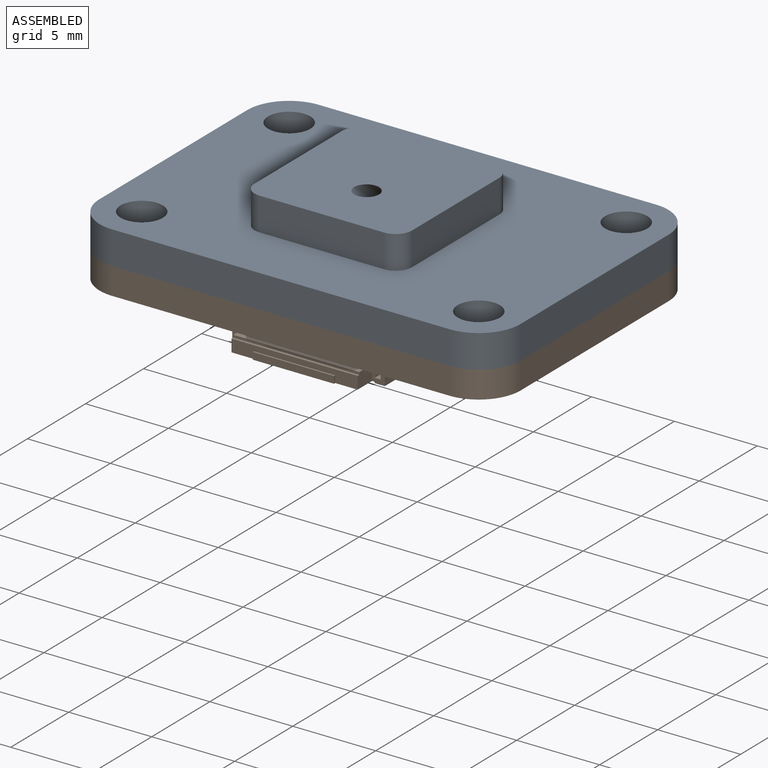
[diagram: assembled view]
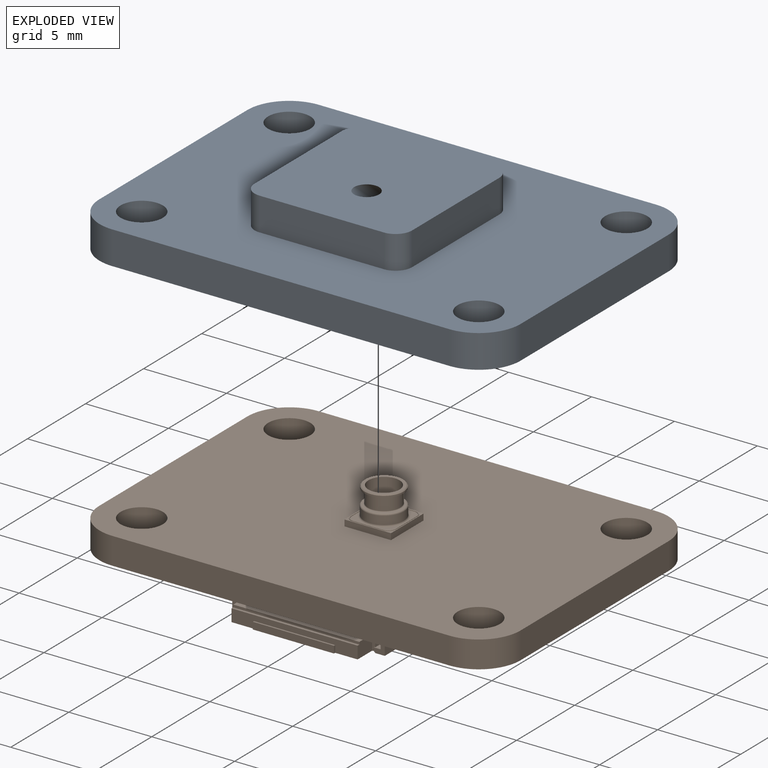
[diagram: exploded view]
GUIDED TOUR — FREECAD ASSEMBLY "LPS28_breakoutBoard_Mount"

This assembly has 2 components, labeled P0..P1 below (a component is one placed body or linked part; the same part can appear more than once), held together by 0 modeled joints plus 1 derived contact edge. A joint is a constraint between two components; its type names the relative motion it leaves free:
  CONTACT — a derived adjacency edge — the two components touch in the source model (clearance under 2% of the assembly's diagonal); it is measured from the geometry, not a modeled constraint.
Axis/direction vectors are unit vectors and 'through' points are millimeter coordinates, both in the assembly's world frame.

MATES
  1. CONTACT "contact_0_1": P0 <-> P1, contact direction (0.000, 0.000, -1.000) through (-11.05, -7.26, 0.00) mm (derived from contact, not a modeled constraint)

ASSEMBLY ORDER
  1. P0 — the base component [order verified]
  2. P1 [order verified]
Order-tag legend:
  [order verified] — this step's position reverses a verified removal order: the component was checked to insert without passing through the ones already placed.

Of the 2 components, 2 carry a construction recipe — the FreeCAD feature program (sketches with constraints, then the solid features that consume them) that regenerates the part from scratch, quoted from this document or from the linked companion document it references; the rest are supplied as boundary geometry only. The tour below walks the components in assembly order: each is shown spotlighted twice — in the assembled view, then in the exploded view, where a leader line traces a displaced component back to its assembled socket (components that stay in place when exploded have no leader line; saturated green if recipe-attached, orange if geometry-only; every other component desaturated gray) — followed by its recipe or geometry summary and the mates that hold it.
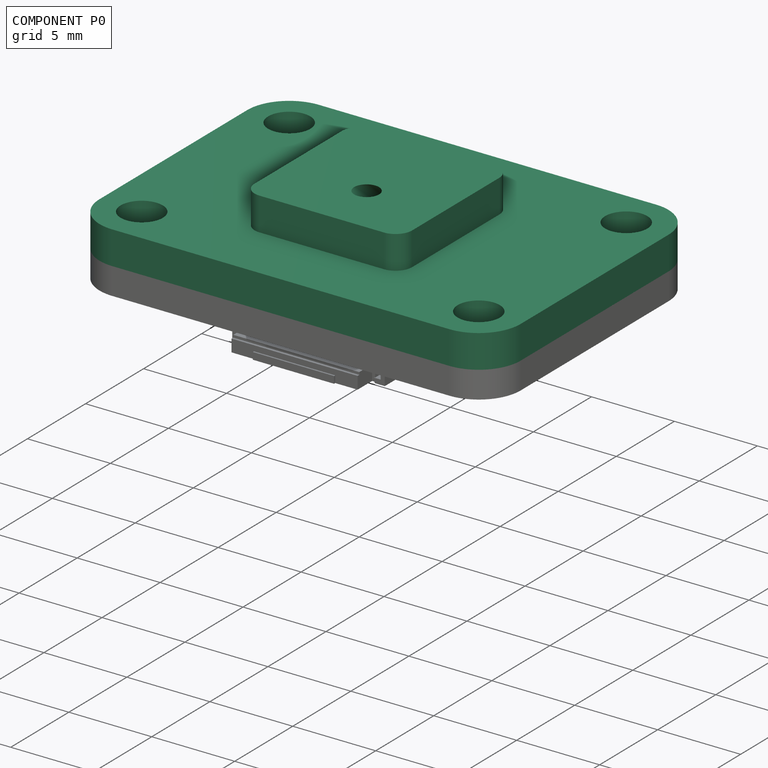
[diagram: component P0 — assembled]
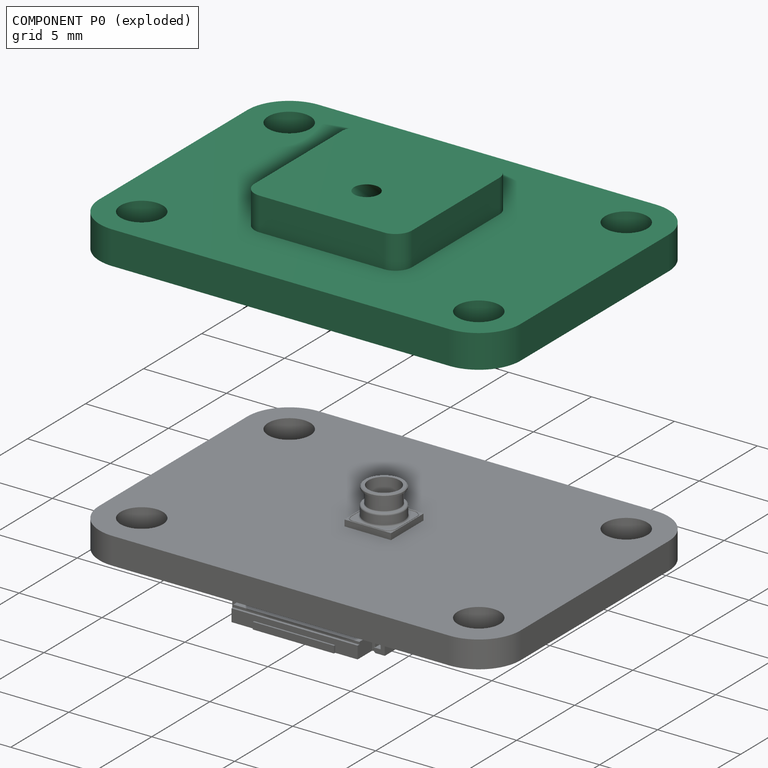
[diagram: component P0 — exploded]
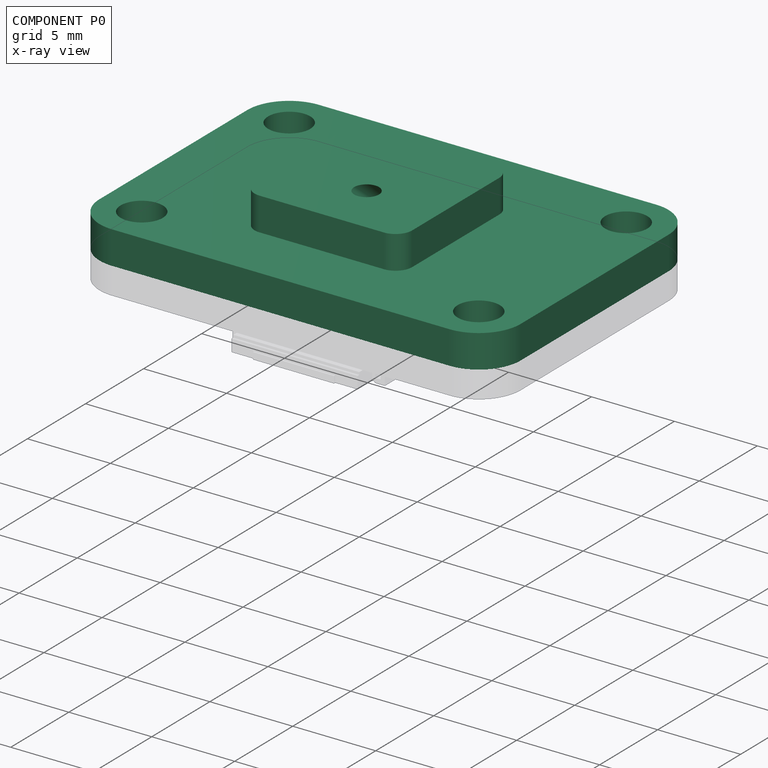
[diagram: component P0 — x-ray view]
COMPONENT P0 — recipe-attached ("Body001", modeled in this document).
Held by: resting contact with P1 (derived edge).
Construction recipe (the document's own serialized feature program — sketch geometry with constraints, then the solid features built on it; lengths are millimeters unless a unit is written):

FEATURE [Sketcher::SketchObject] Sketch
  ArcFitTolerance = 1e-06
  AttachmentSupport = -> [XY_Plane]
  FullyConstrained = true
  MakeInternals = false
  MapMode = 5
  sketch-geometry (10):
    g0: LineSegment StartX=-12.7 StartY=6.35 StartZ=0 EndX=-12.7 EndY=-6.35 EndZ=0
    g1: LineSegment StartX=-10.16 StartY=-8.89 StartZ=0 EndX=10.16 EndY=-8.89 EndZ=0
    g2: LineSegment StartX=12.7 StartY=-6.35 StartZ=0 EndX=12.7 EndY=6.35 EndZ=0
    g3: LineSegment StartX=10.16 StartY=8.89 StartZ=0 EndX=-10.16 EndY=8.89 EndZ=0
    g4: ArcOfCircle CenterX=-10.16 CenterY=6.35 CenterZ=0 NormalX=0 NormalY=0 NormalZ=1 AngleXU=0 Radius=2.54 StartAngle=1.5708 EndAngle=3.14159
    g5: ArcOfCircle CenterX=-10.16 CenterY=-6.35 CenterZ=0 NormalX=0 NormalY=0 NormalZ=1 AngleXU=0 Radius=2.54 StartAngle=3.14159 EndAngle=4.71239
    g6: ArcOfCircle CenterX=10.16 CenterY=-6.35 CenterZ=0 NormalX=0 NormalY=0 NormalZ=1 AngleXU=0 Radius=2.54 StartAngle=4.71239 EndAngle=6.28319
    g7: ArcOfCircle CenterX=10.16 CenterY=6.35 CenterZ=0 NormalX=0 NormalY=0 NormalZ=1 AngleXU=0 Radius=2.54 StartAngle=9.695e-13 EndAngle=1.5708
    g8: GeomPoint [constr] X=-12.7 Y=8.89 Z=0
    g9: GeomPoint [constr] X=12.7 Y=-8.89 Z=0
  constraints (24):
    c: Tangent(g0,g4) = -1.5708
    c: Tangent(g0,g5) = -1.5708
    c: Tangent(g1,g5) = -1.5708
    c: Tangent(g1,g6) = -1.5708
    c: Tangent(g2,g6) = -1.5708
    c: Tangent(g2,g7) = -1.5708
    c: Tangent(g3,g7) = -1.5708
    c: Tangent(g3,g4) = -1.5708
    c: Vertical(g0)
    c: Vertical(g2)
    c: Horizontal(g1)
    c: Horizontal(g3)
    c: Equal(g4,g5)
    c: Equal(g5,g6)
    c: Equal(g6,g7)
    c: PointOnObject(g8,g0)
    c: PointOnObject(g8,g3)
    c: PointOnObject(g9,g1)
    c: PointOnObject(g9,g2)
    c: Distance(g2,g0) = 25.4
    c: Distance(g1,g3) = 17.78
    c: Distance(g-1,g0) = 12.7
    c: Distance(g-1,g3) = 8.89
    c: Radius(g6) = 2.54
FEATURE [PartDesign::Pad] Pad
  Direction = (0,0,1)
  Length = 2
  Length2 = 10
  Profile = -> Sketch
  ReferenceAxis = -> Sketch [N_Axis]
  Refine = true
  Suppressed = false
  Type = 0
FEATURE [Sketcher::SketchObject] Sketch001
  ArcFitTolerance = 1e-06
  AttachmentSupport = -> [XY_Plane]
  FullyConstrained = true
  MakeInternals = false
  MapMode = 5
FEATURE [Sketcher::SketchObject] Sketch002
  ArcFitTolerance = 1e-06
  AttachmentSupport = -> [Pad]
  FullyConstrained = true
  MakeInternals = false
  MapMode = 5
  Placement = pos=(0,0,2) rot=(0,0,1;0rad)
  sketch-geometry (10):
    g0: LineSegment StartX=-4.5 StartY=3.5 StartZ=0 EndX=-4.5 EndY=-3.5 EndZ=0
    g1: LineSegment StartX=-3.5 StartY=-4.5 StartZ=0 EndX=3.5 EndY=-4.5 EndZ=0
    g2: LineSegment StartX=4.5 StartY=-3.5 StartZ=0 EndX=4.5 EndY=3.5 EndZ=0
    g3: LineSegment StartX=3.5 StartY=4.5 StartZ=0 EndX=-3.5 EndY=4.5 EndZ=0
    g4: ArcOfCircle CenterX=-3.5 CenterY=3.5 CenterZ=0 NormalX=0 NormalY=0 NormalZ=1 AngleXU=0 Radius=1 StartAngle=1.5708 EndAngle=3.14159
    g5: ArcOfCircle CenterX=-3.5 CenterY=-3.5 CenterZ=0 NormalX=0 NormalY=0 NormalZ=1 AngleXU=0 Radius=1 StartAngle=3.14159 EndAngle=4.71239
    g6: ArcOfCircle CenterX=3.5 CenterY=-3.5 CenterZ=0 NormalX=0 NormalY=0 NormalZ=1 AngleXU=0 Radius=1 StartAngle=4.71239 EndAngle=6.28319
    g7: ArcOfCircle CenterX=3.5 CenterY=3.5 CenterZ=0 NormalX=0 NormalY=0 NormalZ=1 AngleXU=0 Radius=1 StartAngle=2e-16 EndAngle=1.5708
    g8: GeomPoint [constr] X=-4.5 Y=4.5 Z=0
    g9: GeomPoint [constr] X=4.5 Y=-4.5 Z=0
  constraints (24):
    c: Tangent(g0,g4) = -1.5708
    c: Tangent(g0,g5) = -1.5708
    c: Tangent(g1,g5) = -1.5708
    c: Tangent(g1,g6) = -1.5708
    c: Tangent(g2,g6) = -1.5708
    c: Tangent(g2,g7) = -1.5708
    c: Tangent(g3,g7) = -1.5708
    c: Tangent(g3,g4) = -1.5708
    c: Vertical(g0)
    c: Vertical(g2)
    c: Horizontal(g1)
    c: Horizontal(g3)
    c: Equal(g4,g5)
    c: Equal(g5,g6)
    c: Equal(g6,g7)
    c: PointOnObject(g8,g0)
    c: PointOnObject(g8,g3)
    c: PointOnObject(g9,g1)
    c: PointOnObject(g9,g2)
    c: Distance(g2,g0) = 9
    c: Distance(g1,g3) = 9
    c: Radius(g7) = 1
    c: Distance(g-1,g3) = 4.5
    c: Distance(g-2,g2) = 4.5
FEATURE [PartDesign::Pad] Pad001
  BaseFeature = -> Pad
  Direction = (0,0,1)
  Length = 2
  Length2 = 10
  Profile = -> Sketch002
  ReferenceAxis = -> Sketch002 [N_Axis]
  Refine = true
  Suppressed = false
  Type = 0
FEATURE [Sketcher::SketchObject] Sketch003
  ArcFitTolerance = 1e-06
  AttachmentSupport = -> [Pad001]
  FullyConstrained = true
  MakeInternals = false
  MapMode = 5
  Placement = pos=(0,0,0) rot=(1,0,0;3.14159rad)
  sketch-geometry (4):
    g0: LineSegment StartX=-1.625 StartY=1.625 StartZ=0 EndX=-1.625 EndY=-1.625 EndZ=0
    g1: LineSegment StartX=-1.625 StartY=-1.625 StartZ=0 EndX=1.625 EndY=-1.625 EndZ=0
    g2: LineSegment StartX=1.625 StartY=-1.625 StartZ=0 EndX=1.625 EndY=1.625 EndZ=0
    g3: LineSegment StartX=1.625 StartY=1.625 StartZ=0 EndX=-1.625 EndY=1.625 EndZ=0
  constraints (12):
    c: Coincident(g0,g1)
    c: Coincident(g1,g2)
    c: Coincident(g2,g3)
    c: Coincident(g3,g0)
    c: Vertical(g0)
    c: Vertical(g2)
    c: Horizontal(g1)
    c: Horizontal(g3)
    c: DistanceX(g3,g3) = 3.25
    c: DistanceY(g0,g0) = 3.25
    c: Distance(g-2,g0) = 1.625
    c: Distance(g-1,g3) = 1.625
FEATURE [PartDesign::Pocket] Pocket
  BaseFeature = -> Pad001
  Direction = (0,0,1)
  Length = 0.75
  Length2 = 5
  Profile = -> Sketch003
  ReferenceAxis = -> Sketch003 [N_Axis]
  Refine = true
  Suppressed = false
  Type = 0
FEATURE [Sketcher::SketchObject] Sketch004
  ArcFitTolerance = 1e-06
  AttachmentSupport = -> [Pocket]
  FullyConstrained = true
  MakeInternals = false
  MapMode = 5
  Placement = pos=(0,0,0.75) rot=(1,0,0;3.14159rad)
  sketch-geometry (1):
    g0: Circle CenterX=0 CenterY=0 CenterZ=0 NormalX=0 NormalY=0 NormalZ=1 AngleXU=0 Radius=1.36
  constraints (2):
    c: Coincident(g0,g-1)
    c: Diameter(g0) = 2.72
FEATURE [PartDesign::Pocket] Pocket001
  BaseFeature = -> Pocket
  Direction = (0,0,1)
  Length = 2
  Length2 = 5
  Profile = -> Sketch004
  ReferenceAxis = -> Sketch004 [N_Axis]
  Refine = true
  Suppressed = false
  Type = 0
FEATURE [Sketcher::SketchObject] Sketch005
  ArcFitTolerance = 1e-06
  AttachmentSupport = -> [Pocket001]
  FullyConstrained = true
  MakeInternals = false
  MapMode = 5
  Placement = pos=(0,0,2.75) rot=(1,0,0;3.14159rad)
  sketch-geometry (1):
    g0: Circle CenterX=0 CenterY=0 CenterZ=0 NormalX=0 NormalY=0 NormalZ=1 AngleXU=0 Radius=0.625
  constraints (2):
    c: Coincident(g0,g-1)
    c: Diameter(g0) = 1.25
FEATURE [Sketcher::SketchObject] Sketch006
  ArcFitTolerance = 1e-06
  AttachmentSupport = -> [Pocket001]
  FullyConstrained = true
  MakeInternals = false
  MapMode = 5
  Placement = pos=(0,0,4) rot=(0,0,1;0rad)
  sketch-geometry (1):
    g0: Circle CenterX=0 CenterY=-1.5 CenterZ=0 NormalX=0 NormalY=0 NormalZ=1 AngleXU=0 Radius=0.75
  constraints (3):
    c: PointOnObject(g0,g-2)
    c: Diameter(g0) = 1.5
    c: Distance(g0,g-1) = 1.5
FEATURE [PartDesign::SubtractiveLoft] SubtractiveLoft
  BaseFeature = -> Pocket001
  Closed = false
  Profile = -> Sketch005
  Refine = true
  Ruled = false
  Sections = -> [Sketch006]
  Suppressed = false
FEATURE [PartDesign::Chamfer] Chamfer
  Angle = 45
  Base = -> SubtractiveLoft [Edge61]
  BaseFeature = -> SubtractiveLoft
  ChamferType = 0
  FlipDirection = false
  Refine = true
  Size = 0.15
  Size2 = 1
  SupportTransform = false
  Suppressed = false
  UseAllEdges = false
FEATURE [Sketcher::SketchObject] Sketch007
  ArcFitTolerance = 1e-06
  AttachmentSupport = -> [Chamfer]
  FullyConstrained = true
  MakeInternals = false
  MapMode = 5
  Placement = pos=(0,0,2) rot=(0,0,1;0rad)
  sketch-geometry (4):
    g0: Circle CenterX=-10.16 CenterY=6.35 CenterZ=0 NormalX=0 NormalY=0 NormalZ=1 AngleXU=0 Radius=1.27
    g1: Circle CenterX=10.16 CenterY=6.35 CenterZ=0 NormalX=0 NormalY=0 NormalZ=1 AngleXU=0 Radius=1.27
    g2: Circle CenterX=-10.16 CenterY=-6.35 CenterZ=0 NormalX=0 NormalY=0 NormalZ=1 AngleXU=0 Radius=1.27
    g3: Circle CenterX=10.16 CenterY=-6.35 CenterZ=0 NormalX=0 NormalY=0 NormalZ=1 AngleXU=0 Radius=1.27
  constraints (12):
    c: Distance(g0,g-2) = 10.16
    c: DistanceY(g-1,g0) = 6.35
    c: Diameter(g0) = 2.54
    c: Equal(g0,g1)
    c: Equal(g0,g2)
    c: Equal(g0,g3)
    c: DistanceY(g2,g0) = 12.7
    c: Vertical(g2,g0)
    c: DistanceX(g2,g3) = 20.32
    c: Horizontal(g3,g2)
    c: Vertical(g1,g3)
    c: Horizontal(g1,g0)
FEATURE [PartDesign::Pocket] Pocket002
  BaseFeature = -> Chamfer
  Direction = (0,0,-1)
  Length = 5
  Length2 = 5
  Profile = -> Sketch007
  ReferenceAxis = -> Sketch007 [N_Axis]
  Refine = true
  Suppressed = false
  Type = 1
FEATURE [PartDesign::Body] Body
  AllowCompound = false
  Group = -> [Sketch,Pad,Sketch001,Sketch002,Pad001,Sketch003,Pocket,Sketch004,Pocket001,Sketch005,Sketch006,SubtractiveLoft,Chamfer,Sketch007,Pocket002]
  Origin = -> Origin
  Tip = -> Pocket002
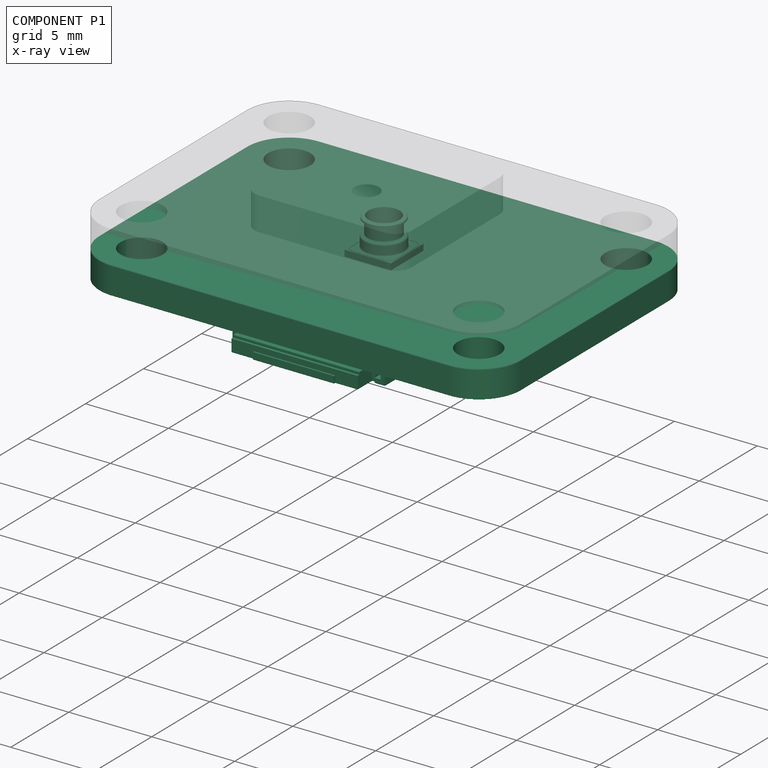
[diagram: component P1 — x-ray view]
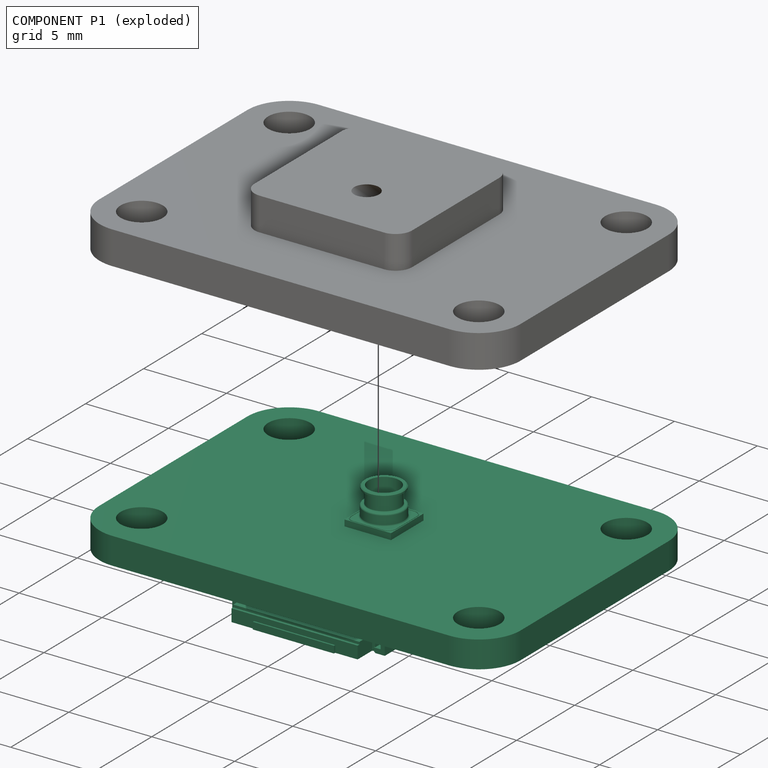
[diagram: component P1 — exploded]
COMPONENT P1 — recipe-attached ("lps28dfwBreakoutBoard", a linked part whose construction recipe lives in a companion FreeCAD document of the same project; that document's serialized recipe follows).
Held by: resting contact with P0 (derived edge).
Construction recipe (the companion document, serialized — sketch geometry with constraints, then the solid features built on it; lengths are millimeters unless a unit is written):

FCSTD DOCUMENT  (FreeCAD 1.0R39109 (Git))
Label: lps28_breakoutBoard
License: All rights reserved
LicenseURL: https://en.wikipedia.org/wiki/All_rights_reserved
objects: Part::Feature×13, App::Part×8, App::Link×2, PartDesign::CoordinateSystem×1, Sketcher::SketchObject×1
note: 16 computed .brp shape members not serialized (recipe doc carries the construction recipe); baked Part::Feature solids carry a one-line shape summary decoded from their .brp

FEATURE [PartDesign::CoordinateSystem] Local_CS_1557
  AttacherType = Attacher::AttachEngine3D
  MapMode = 2
FEATURE [Part::Feature] Pcb_1557
  Placement = pos=(-127,99.06,0) rot=(0,0,1;0rad)
  shape: bbox 25.4 x 17.78 x 1.624 mm, 14 faces (baked)
FEATURE [Sketcher::SketchObject] PCB_Sketch_1557
  ArcFitTolerance = 1e-06
  FullyConstrained = false
  MakeInternals = false
  sketch-geometry (8):
    g0: LineSegment StartX=0 StartY=-15.24 StartZ=0 EndX=0 EndY=-2.54 EndZ=0
    g1: LineSegment StartX=2.54 StartY=0 StartZ=0 EndX=22.86 EndY=4e-16 EndZ=0
    g2: LineSegment StartX=22.86 StartY=-17.78 StartZ=0 EndX=2.54 EndY=-17.78 EndZ=0
    g3: LineSegment StartX=25.4 StartY=-2.54 StartZ=0 EndX=25.4 EndY=-15.24 EndZ=0
    g4: ArcOfCircle CenterX=2.54 CenterY=-15.24 CenterZ=0 NormalX=0 NormalY=0 NormalZ=-1 AngleXU=-1.5708 Radius=2.54 StartAngle=0 EndAngle=1.5708
    g5: ArcOfCircle CenterX=22.86 CenterY=-2.54 CenterZ=0 NormalX=0 NormalY=0 NormalZ=-1 AngleXU=1.5708 Radius=2.54 StartAngle=0 EndAngle=1.5708
    g6: ArcOfCircle CenterX=22.86 CenterY=-15.24 CenterZ=0 NormalX=0 NormalY=0 NormalZ=-1 AngleXU=-3.14159 Radius=2.54 StartAngle=0 EndAngle=1.5708
    g7: ArcOfCircle CenterX=2.54 CenterY=-2.54 CenterZ=0 NormalX=0 NormalY=0 NormalZ=-1 AngleXU=3.01383e-07 Radius=2.54 StartAngle=0 EndAngle=1.5708
  constraints (8):
    c: Coincident(g0,g4)
    c: Coincident(g0,g7)
    c: Coincident(g2,g4)
    c: Coincident(g1,g7)
    c: Coincident(g2,g6)
    c: Coincident(g1,g5)
    c: Coincident(g3,g6)
    c: Coincident(g3,g5)
FEATURE [App::Part] Board_Geoms_1557
  Group = -> [Pcb_1557,PCB_Sketch_1557]
  Origin = -> Origin
FEATURE [Part::Feature] Shape  label="U1_LPS28DFW_293fee886f45"
  Placement = pos=(12.7,-8.89,0) rot=(0,0,-1;1.5708rad)
  shape: bbox 2.961 x 2.961 x 2.105 mm, 109 faces (baked)
FEATURE [App::Part] Top_1557
  Group = -> [Shape]
  Origin = -> Origin003
FEATURE [Part::Feature] Part__Feature  label="CRCW04020000Z0ED"
  shape: bbox 0.96 x 0.36 x 0.5 mm, 6 faces (baked)
FEATURE [Part::Feature] Part__Feature001  label="CRCW04020000Z0ED001"
  shape: bbox 0.6 x 0.02 x 0.5 mm, 6 faces (baked)
FEATURE [Part::Feature] Part__Feature002  label="CRCW04020000Z0ED002"
  shape: bbox 0.25 x 0.4 x 0.5 mm, 14 faces (baked)
FEATURE [Part::Feature] Part__Feature003  label="CRCW04020000Z0ED003"
  shape: bbox 0.25 x 0.4 x 0.5 mm, 14 faces (baked)
FEATURE [App::Part] CRCW04020000Z0ED  label="R2_CRCW04020000Z0ED004_52951a83fe73"
  Group = -> [Part__Feature,Part__Feature001,Part__Feature002,Part__Feature003]
  Origin = -> Origin008
  Placement = pos=(9.652,-8.636,-1.6244) rot=(-1,0,0;1.5708rad)
FEATURE [App::Link] R2_CRCW04020000Z0ED004_52951a83fe73_ln_  label="R1_CRCW04020000Z0ED004_233cda1e57a4"
  LinkPlacement = pos=(9.652,-7.366,-1.6244) rot=(0,0.707107,-0.707107;3.14159rad)
  LinkedObject = -> CRCW04020000Z0ED
  Placement = pos=(9.652,-7.366,-1.6244) rot=(0,0.707107,-0.707107;3.14159rad)
FEATURE [Part::Feature] Part__Feature004  label="GRM_Auto_Q3_1.6_0.8_0.9_0.35"
  shape: bbox 0.35 x 0.9 x 0.8 mm, 18 faces (baked)
FEATURE [Part::Feature] Part__Feature005  label="GRM_Auto_Q3_1.6_0.8_0.9_0.036"
  shape: bbox 0.35 x 0.9 x 0.8 mm, 18 faces (baked)
FEATURE [Part::Feature] Part__Feature006  label="GRM_Auto_Q3_1.6_0.8_0.9_0.037"
  shape: bbox 0.9 x 0.8733 x 0.7733 mm, 10 faces (baked)
FEATURE [App::Part] GRM_Auto_Q3_1_6_0_8_0_9_0_35  label="C1_GRM_Auto_Q3_1.6_0.8_0.9_0.038_6210436b3e14"
  Group = -> [Part__Feature004,Part__Feature005,Part__Feature006]
  Origin = -> Origin009
  Placement = pos=(17.018,-8.128,-1.6244) rot=(0.57735,-0.57735,0.57735;4.18879rad)
FEATURE [Part::Feature] Part__Feature007  label="UVK105CH0R9BW-F"
  shape: bbox 0.25 x 0.55 x 0.5 mm, 18 faces (baked)
FEATURE [Part::Feature] Part__Feature008  label="UVK105CH0R9BW-F001"
  shape: bbox 0.25 x 0.55 x 0.5 mm, 18 faces (baked)
FEATURE [Part::Feature] Part__Feature009  label="UVK105CH0R9BW-F002"
  shape: bbox 0.5 x 0.5333 x 0.4833 mm, 10 faces (baked)
FEATURE [App::Part] UVK105CH0R9BW_F  label="C2_UVK105CH0R9BW-F003_51bb8f3cb2e2"
  Group = -> [Part__Feature007,Part__Feature008,Part__Feature009]
  Origin = -> Origin010
  Placement = pos=(15.494,-8.509,-1.6244) rot=(0.57735,-0.57735,0.57735;4.18879rad)
FEATURE [App::Link] R2_CRCW04020000Z0ED004_52951a83fe73_ln_001  label="R3_CRCW04020000Z0ED004_00ae542bfebb"
  LinkPlacement = pos=(9.652,-9.906,-1.6244) rot=(-1,0,0;1.5708rad)
  LinkedObject = -> CRCW04020000Z0ED
  Placement = pos=(9.652,-9.906,-1.6244) rot=(-1,0,0;1.5708rad)
FEATURE [Part::Feature] Shape001  label="J1_2005280040_f94c95c36937"
  Placement = pos=(12.7,-11.44,-1.6244) rot=(0,0,1;3.14159rad)
  shape: bbox 10 x 5.3 x 1.96 mm, 494 faces (baked)
FEATURE [App::Part] Bot_1557
  Group = -> [CRCW04020000Z0ED,R2_CRCW04020000Z0ED004_52951a83fe73_ln_,GRM_Auto_Q3_1_6_0_8_0_9_0_35,UVK105CH0R9BW_F,R2_CRCW04020000Z0ED004_52951a83fe73_ln_001,Shape001]
  Origin = -> Origin004
FEATURE [App::Part] Step_Models_1557
  Group = -> [Top_1557,Bot_1557]
  Origin = -> Origin002
FEATURE [App::Part] Board_1557  label="lps28dfwBreakoutBoard"
  Group = -> [Local_CS_1557,Board_Geoms_1557,Step_Models_1557]
  Origin = -> Origin001
PROVENANCE & LICENSES
Assembly and component geometry: a FreeCAD (.FCStd) document from a public repository crawl; components, placements and joints were extracted with FreeCAD and each solid tessellated.
Construction recipes: the document's own serialized feature recipes (and, for linked parts, the recipes of companion documents from the same project).
License: as declared in the source repository (recorded in the dataset sidecar).
Joints: native FreeCAD joints and A2plus constraints are mapped to standard mate types; edges marked 'derived from contact' connect touching components and are measured from the geometry, not modeled.
Verification: 2 of this assembly's 2 components carry a construction recipe (1 from this document itself, 1 from linked companion documents in the same project); the rest are geometry-only. Every component's tessellation passed the extraction mesh gates (mesh-volume checksum against the B-rep where available, bounding-box inflation <= 2%).
Renders: orthographic iso camera (az 35 / el 25); the floor grid conveys scale (grid pitch printed in each image; no ruler). In the exploded view each component is displaced by its stored offset vector: the offsets alone carry the explosion direction (mate normal/axis signs are not orientation cues and do not encode it), and separation distances are assigned per mate-chain, not proportionally to assembly-order depth.
